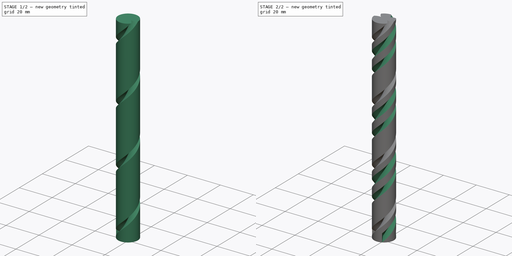
[diagram: build sequence overview — one tinted view per stage of 2, left to right]
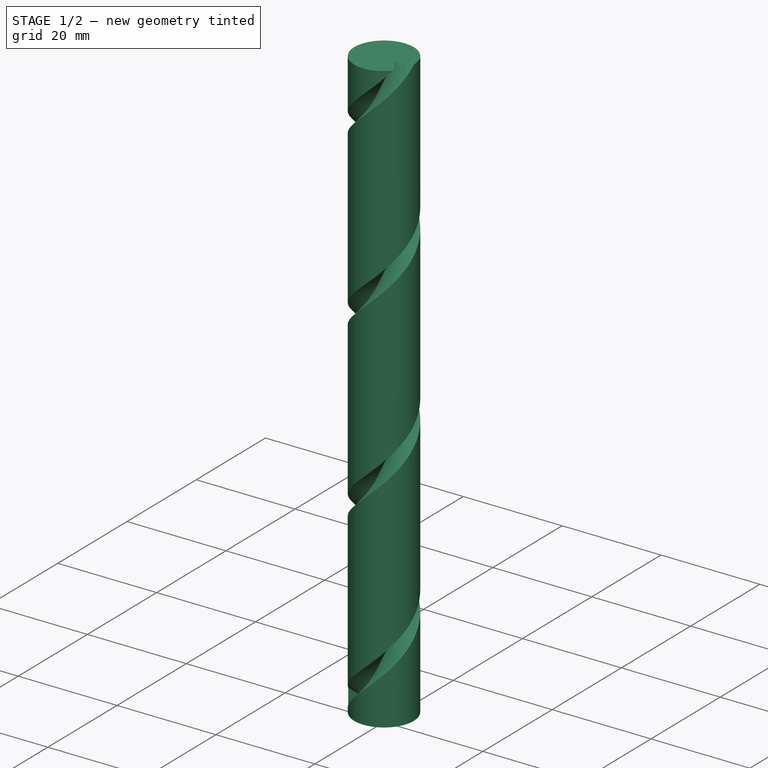
[diagram: stage 1 of 2 — iso view after this stage's code; geometry added in this stage tinted green]
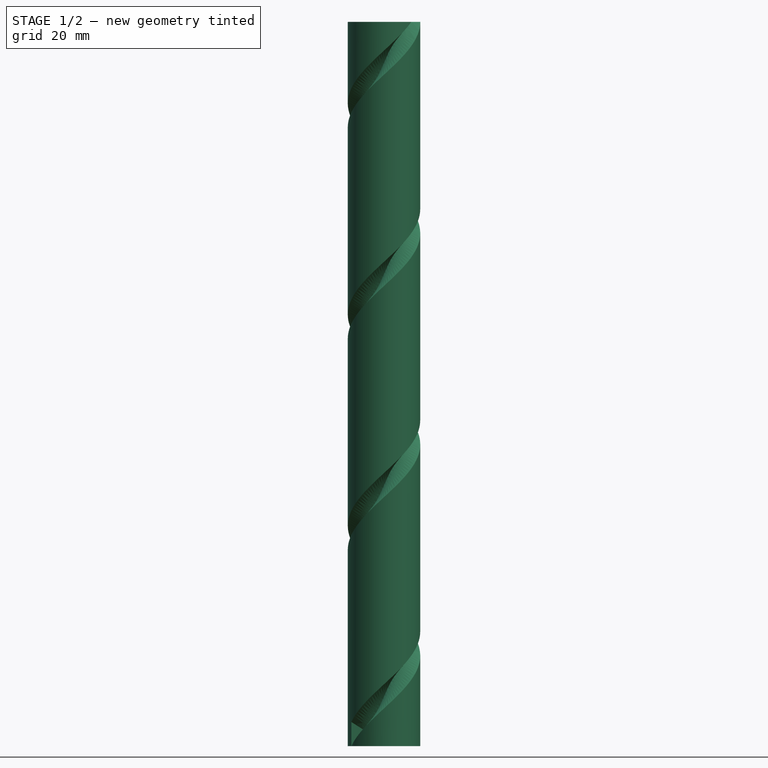
[diagram: stage 1 of 2 — front view after this stage's code; geometry added in this stage tinted green]
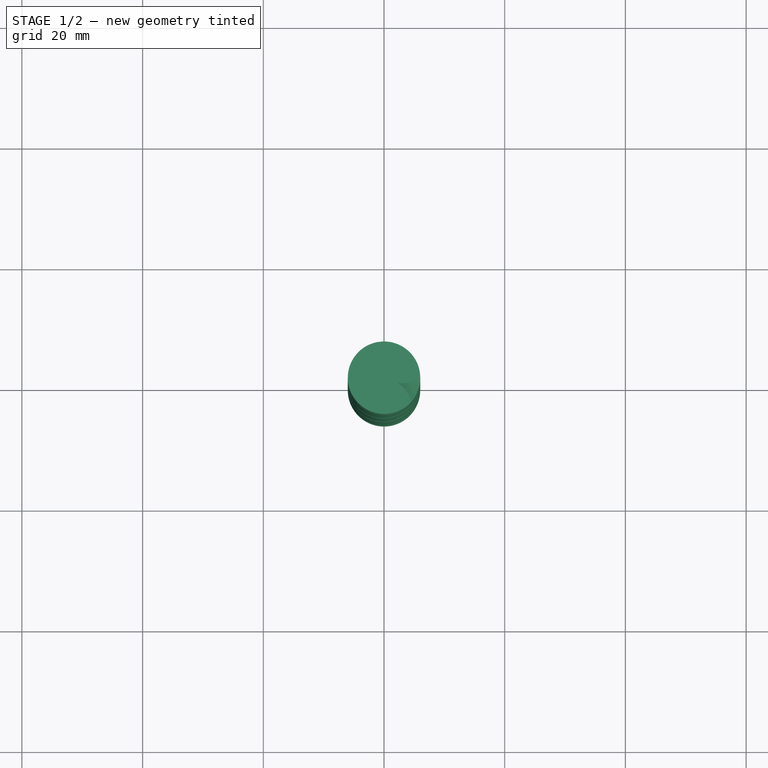
[diagram: stage 1 of 2 — top view after this stage's code; geometry added in this stage tinted green]
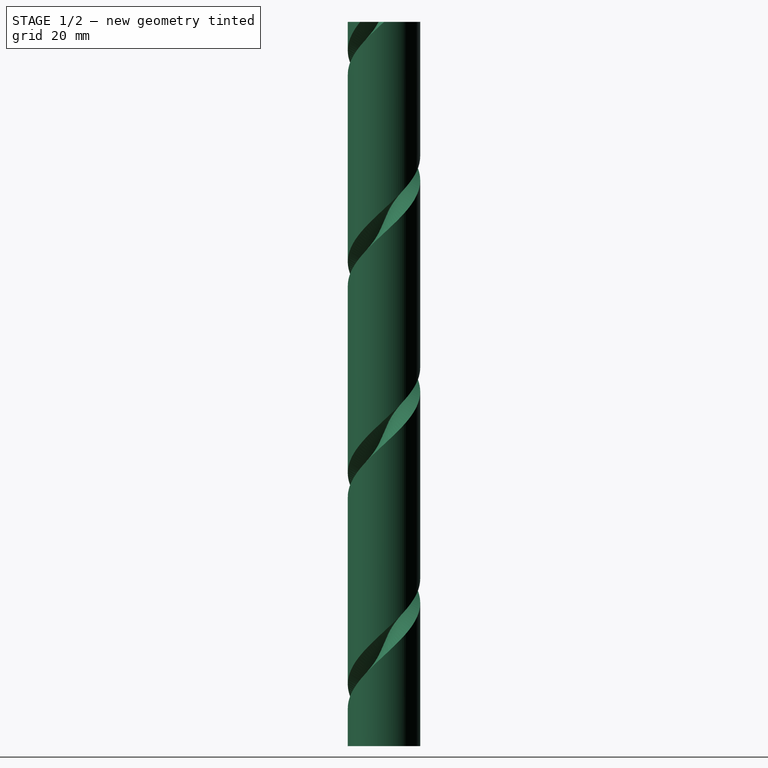
[diagram: stage 1 of 2 — right view after this stage's code; geometry added in this stage tinted green]
FCSTD DOCUMENT  (FreeCAD 1.0R39109 (Git))
Label: Milling-Cutter
License: All rights reserved
LicenseURL: https://en.wikipedia.org/wiki/All_rights_reserved
objects: Sketcher::SketchObject×4, PartDesign::SubtractiveHelix×3, PartDesign::Pad×1, PartDesign::Body×1
note: 21 computed .brp shape members not serialized (recipe doc carries the construction recipe); baked Part::Feature solids carry a one-line shape summary decoded from their .brp

FEATURE [Sketcher::SketchObject] Sketch
  ArcFitTolerance = 1e-06
  AttachmentSupport = -> [XY_Plane]
  FullyConstrained = true
  MakeInternals = false
  MapMode = 5
  sketch-geometry (1):
    g0: Circle CenterX=0 CenterY=0 CenterZ=0 NormalX=0 NormalY=0 NormalZ=1 AngleXU=0 Radius=6
  constraints (2):
    c: Coincident(g0,g-1)
    c: Diameter(g0) = 12
FEATURE [PartDesign::Pad] Pad
  Direction = (0,0,1)
  Length = 120
  Length2 = 10
  Profile = -> Sketch
  ReferenceAxis = -> Sketch [N_Axis]
  Refine = true
  Suppressed = false
  Type = 0
FEATURE [Sketcher::SketchObject] Sketch001
  ArcFitTolerance = 1e-06
  AttachmentSupport = -> [XZ_Plane]
  FullyConstrained = false
  MakeInternals = false
  MapMode = 5
  Placement = pos=(0,0,0) rot=(1,0,0;1.5708rad)
  sketch-geometry (3):
    g0: LineSegment StartX=6 StartY=120 StartZ=0 EndX=6 EndY=124 EndZ=0
    g1: LineSegment StartX=6 StartY=124 StartZ=0 EndX=2.5 EndY=121.979 EndZ=0
    g2: LineSegment StartX=2.5 StartY=121.979 StartZ=0 EndX=6 EndY=120 EndZ=0
  constraints (5):
    c: Vertical(g0)
    c: Coincident(g1,g0)
    c: Angle(g1,g0) = 1.0472
    c: Coincident(g2,g1)
    c: Coincident(g2,g0)
FEATURE [PartDesign::SubtractiveHelix] SubtractiveHelix
  Angle = 0
  Axis = (1e-16,1e-16,1)
  Base = (0,0,0)
  BaseFeature = -> Pad
  Growth = 0
  HasBeenEdited = true
  Height = 120
  LeftHanded = false
  Mode = 0
  Outside = false
  Pitch = 35
  Profile = -> Sketch001
  ReferenceAxis = -> Z_Axis
  Refine = true
  Reversed = true
  Suppressed = false
  Tolerance = 0.1
  Turns = 3.42857
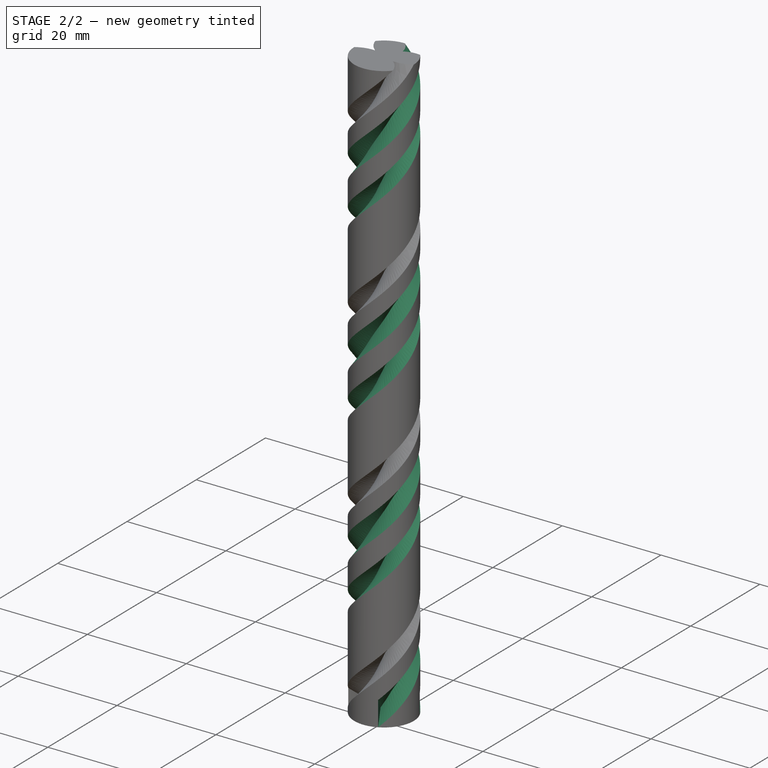
[diagram: stage 2 of 2 — iso view after this stage's code; geometry added in this stage tinted green]
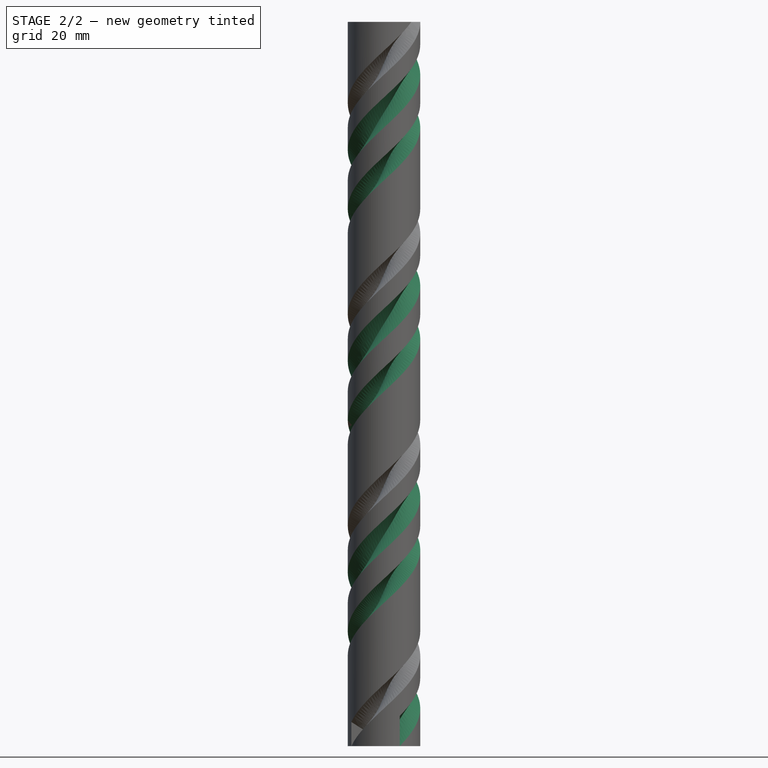
[diagram: stage 2 of 2 — front view after this stage's code; geometry added in this stage tinted green]
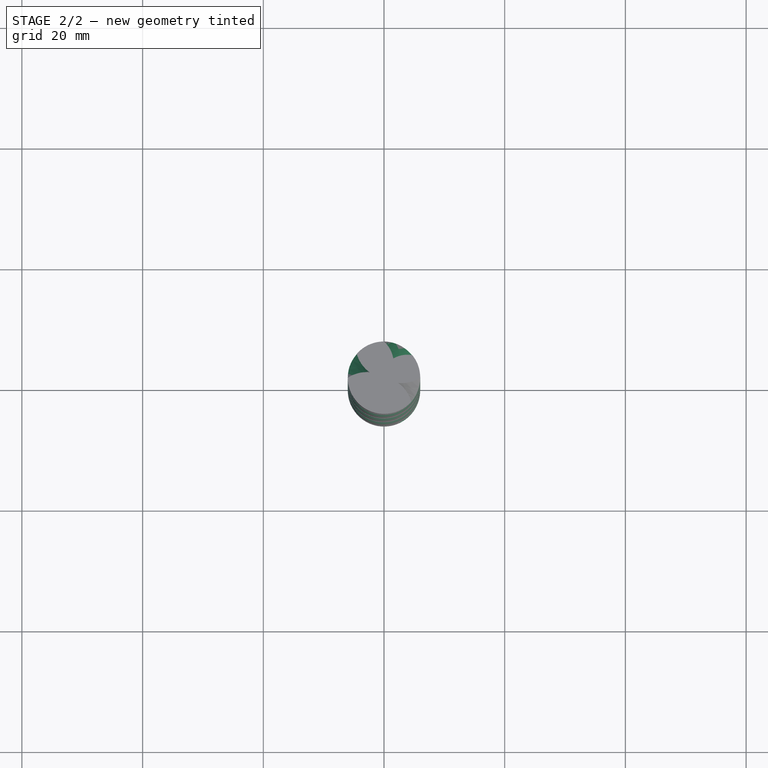
[diagram: stage 2 of 2 — top view after this stage's code; geometry added in this stage tinted green]
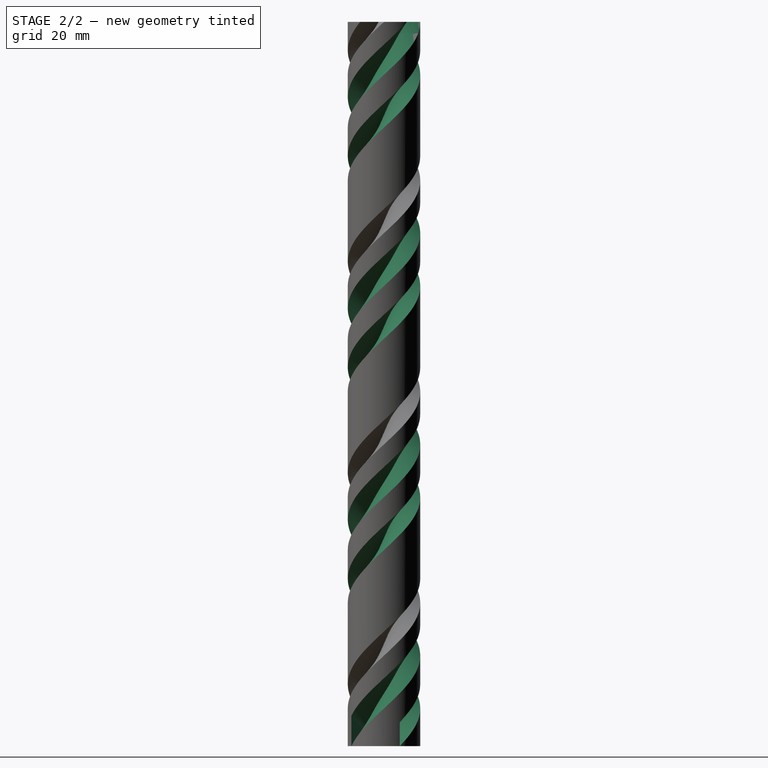
[diagram: stage 2 of 2 — right view after this stage's code; geometry added in this stage tinted green]
FEATURE [Sketcher::SketchObject] Sketch002
  ArcFitTolerance = 1e-06
  AttachmentSupport = -> [XZ_Plane]
  FullyConstrained = false
  MakeInternals = false
  MapMode = 5
  Placement = pos=(0,0,0) rot=(1,0,0;1.5708rad)
  sketch-geometry (3):
    g0: LineSegment StartX=-6.00171 StartY=123.999 StartZ=0 EndX=-2.53761 EndY=121.999 EndZ=0
    g1: LineSegment StartX=-6.00171 StartY=119.999 StartZ=0 EndX=-2.53761 EndY=121.999 EndZ=0
    g2: LineSegment StartX=-6.00171 StartY=123.999 StartZ=0 EndX=-6.00171 EndY=119.999 EndZ=0
  constraints (5):
    c: Distance(g0,g0) = 4
    c: Coincident(g1,g0)
    c: Coincident(g2,g0)
    c: Coincident(g2,g1)
    c: Vertical(g2)
FEATURE [PartDesign::SubtractiveHelix] SubtractiveHelix001
  Angle = 0
  Axis = (0,2e-16,1)
  Base = (0,0,0)
  BaseFeature = -> SubtractiveHelix
  Growth = 0
  HasBeenEdited = true
  Height = 120
  LeftHanded = false
  Mode = 0
  Outside = false
  Pitch = 35
  Profile = -> Sketch002
  ReferenceAxis = -> Sketch002 [V_Axis]
  Refine = true
  Reversed = true
  Suppressed = false
  Tolerance = 0.1
  Turns = 3.42857
FEATURE [Sketcher::SketchObject] Sketch003
  ArcFitTolerance = 1e-06
  AttachmentSupport = -> [YZ_Plane]
  FullyConstrained = true
  MakeInternals = false
  MapMode = 5
  Placement = pos=(0,0,0) rot=(0.57735,0.57735,0.57735;2.0944rad)
  sketch-geometry (3):
    g0: LineSegment StartX=6 StartY=120 StartZ=0 EndX=6 EndY=125 EndZ=0
    g1: LineSegment StartX=6 StartY=125 StartZ=0 EndX=3.5 EndY=122.5 EndZ=0
    g2: LineSegment StartX=6 StartY=120 StartZ=0 EndX=3.5 EndY=122.5 EndZ=0
  constraints (8):
    c: Vertical(g0)
    c: Block(g0)
    c: DistanceY(g0,g0) = 5
    c: Coincident(g1,g0)
    c: Coincident(g2,g0)
    c: Angle(g1,g0) = 0.785398
    c: Angle(g0,g2) = 0.785398
    c: Coincident(g1,g2)
FEATURE [PartDesign::SubtractiveHelix] SubtractiveHelix002
  Angle = 0
  Axis = (0,0,1)
  Base = (0,0,0)
  BaseFeature = -> SubtractiveHelix001
  Growth = 0
  HasBeenEdited = true
  Height = 120
  LeftHanded = false
  Mode = 0
  Outside = false
  Pitch = 35
  Profile = -> Sketch003
  ReferenceAxis = -> Sketch003 [V_Axis]
  Refine = true
  Reversed = true
  Suppressed = false
  Tolerance = 0.1
  Turns = 3.42857
FEATURE [PartDesign::Body] Body
  AllowCompound = false
  Group = -> [Sketch,Pad,Sketch001,SubtractiveHelix,Sketch002,SubtractiveHelix001,Sketch003,SubtractiveHelix002]
  Origin = -> Origin
  Tip = -> SubtractiveHelix002
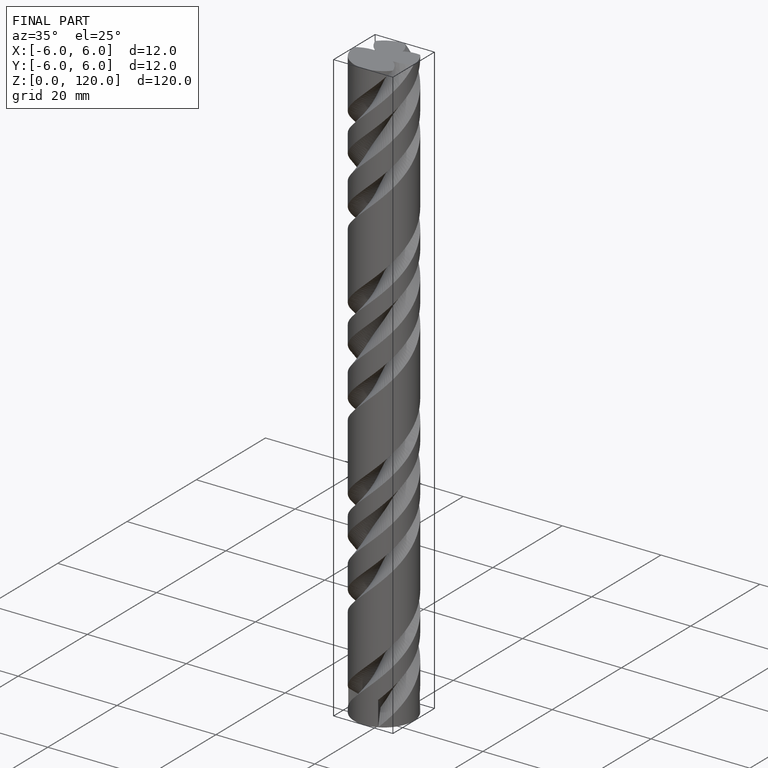
[diagram: finished part — iso view with bounding-box wireframe]
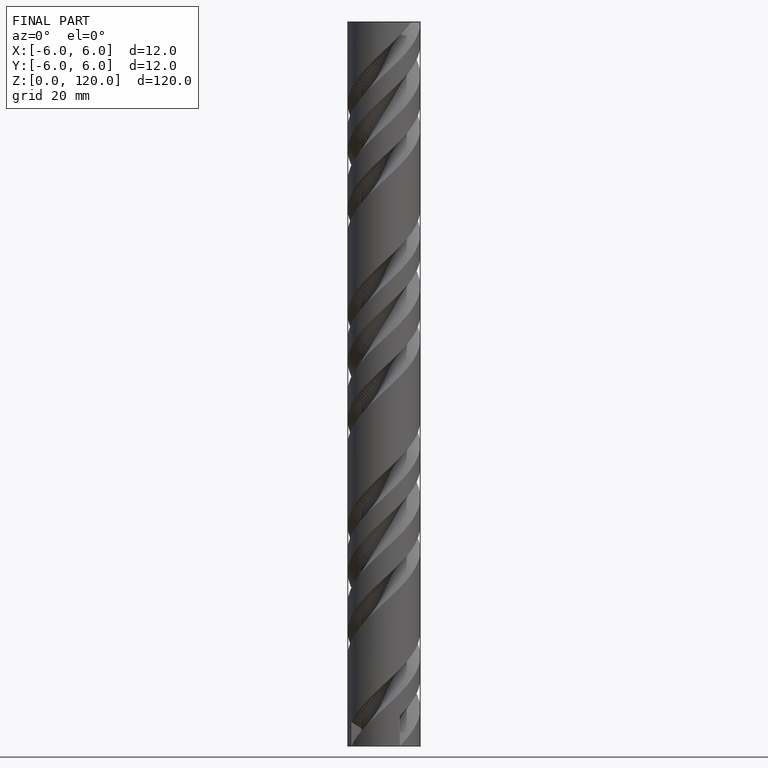
[diagram: finished part — front view with bounding-box wireframe]
